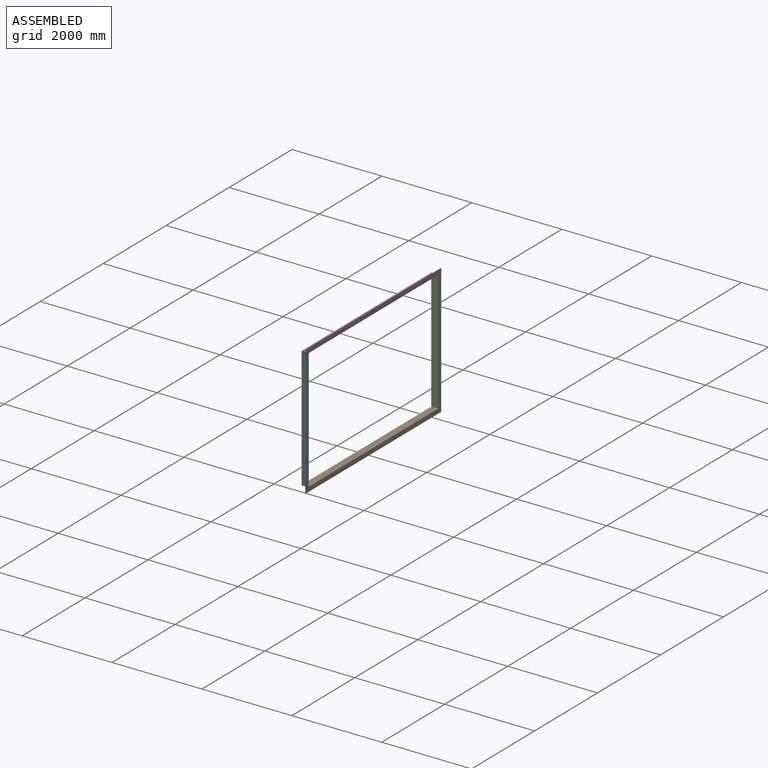
[diagram: assembled view]
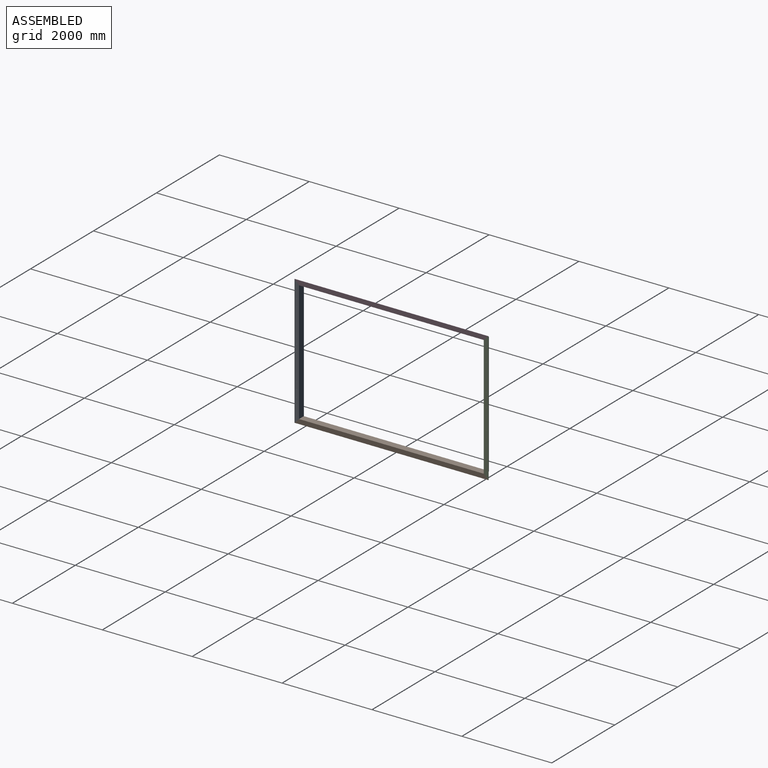
[diagram: assembled view, second angle]
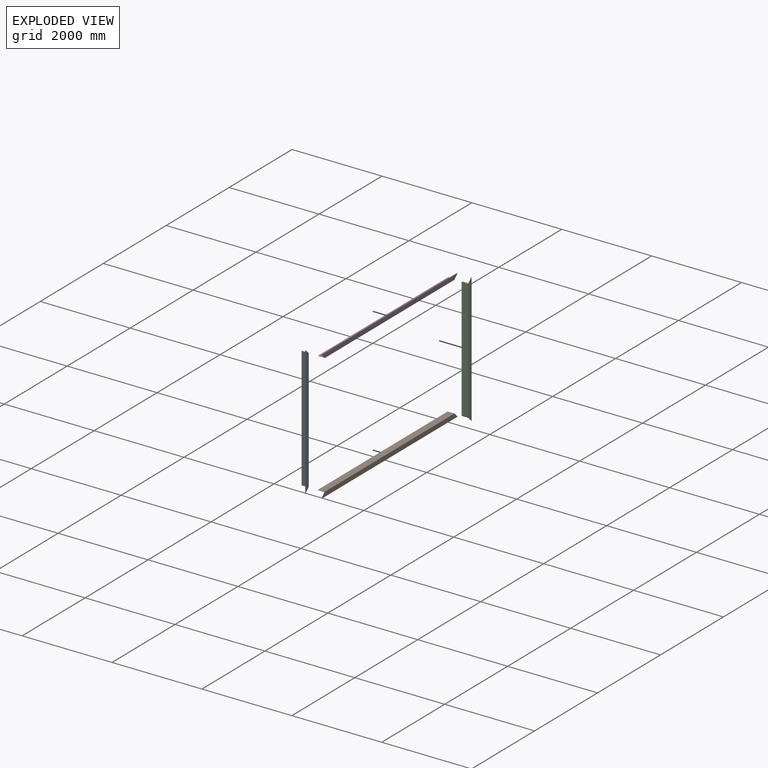
[diagram: exploded view]
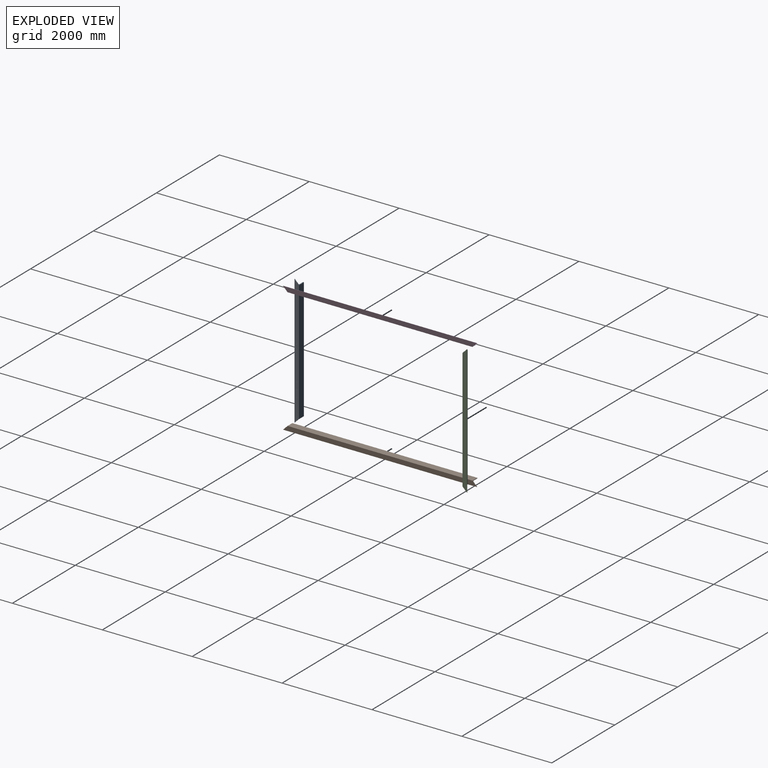
[diagram: exploded view, second angle]
ASSEMBLY  parts=4 mates=3
PART A: 32 faces, bbox 152.4x101.6x2891.8 mm
  f0: cylinder r=3.38mm len=9.53mm, axis (1,0,0), area 202.2mm2, adj f20,f23
  f1: cylinder r=3.38mm len=9.53mm, axis (1,0,0), area 202.2mm2, adj f20,f23
  f2: cylinder r=3.38mm len=9.53mm, axis (1,0,0), area 202.2mm2, adj f20,f23
  f3: cylinder r=3.38mm len=9.53mm, axis (1,0,0), area 202.2mm2, adj f20,f23
  f4: cylinder r=3.38mm len=9.53mm, axis (1,0,0), area 202.2mm2, adj f20,f23
  f5: cylinder r=3.38mm len=9.53mm, axis (1,0,0), area 202.2mm2, adj f20,f23
  f6: cylinder r=3.38mm len=9.53mm, axis (1,0,0), area 202.2mm2, adj f20,f23
  f7: cylinder r=3.38mm len=9.53mm, axis (1,0,0), area 202.2mm2, adj f20,f23
  f8: cylinder r=3.38mm len=9.53mm, axis (1,0,0), area 202.2mm2, adj f20,f23
  f9: cylinder r=3.38mm len=9.53mm, axis (1,0,0), area 202.2mm2, adj f20,f23
  f10: cylinder r=3.38mm len=9.53mm, axis (1,0,0), area 202.2mm2, adj f20,f23
  f11: cylinder r=3.38mm len=9.53mm, axis (1,0,0), area 202.2mm2, adj f20,f23
  f12: cylinder r=3.38mm len=9.53mm, axis (1,0,0), area 202.2mm2, adj f20,f23
  f13: cylinder r=3.38mm len=9.53mm, axis (1,0,0), area 202.2mm2, adj f20,f23
  f14: cylinder r=3.38mm len=9.53mm, axis (1,0,0), area 202.2mm2, adj f20,f23
  f15: cylinder r=3.38mm len=9.53mm, axis (1,0,0), area 202.2mm2, adj f20,f23
  f16: plane 152.4x48.41mm, normal (0,0.71,-0.71), area 2618.8mm2, adj f20,f21,f22,f23,f26,f27,f28,f31
  f17: plane 48.41x48.41mm, normal (0,0.71,-0.71), area 645.2mm2, adj f20,f23,f24,f25,f31
  f18: plane 152.4x48.41mm, normal (0,0.71,0.71), area 2618.8mm2, adj f20,f21,f22,f23,f26,f27,f28,f30
  f19: plane 48.41x48.41mm, normal (0,0.71,0.71), area 645.2mm2, adj f20,f23,f24,f25,f30
  f20: plane 2891.81x101.6mm, normal (1,0,0), area 282839.5mm2, adj f0,f1,f2,f3,f4,f5,f6,f7
  f21: plane 2707.66x125.41mm, normal (0,-1,0), area 339573.8mm2, adj f16,f18,f22,f28
  f22: cylinder r=12.7mm len=2733.06mm, axis (0,0,1), area 54199.1mm2, adj f16,f18,f21,f23
  f23: plane 2882.28x74.61mm, normal (-1,0,0), area 208841.8mm2, adj f0,f1,f2,f3,f4,f5,f6,f7
  f24: cylinder r=4.76mm len=2891.81mm, axis (0,0,1), area 21607.2mm2, adj f17,f19,f23,f25
  f25: plane 2891.81x4.76mm, normal (0,-1,0), area 13772.2mm2, adj f17,f19,f20,f24
  f26: plane 2688.61x152.4mm, normal (0,1,0), area 409743.4mm2, adj f16,f18,f20,f27
  f27: plane 2698.13x4.76mm, normal (-1,0,0), area 12827.2mm2, adj f16,f18,f26,f28
  f28: cylinder r=4.76mm len=2707.66mm, axis (0,0,1), area 20229.6mm2, adj f16,f18,f21,f27
  f29: cylinder r=3.38mm len=9.53mm, axis (1,0,0), area 202.2mm2, adj f20,f23
  f30: cylinder r=3.38mm len=9.53mm, axis (1,0,0), area 101.1mm2, adj f18,f19,f20,f23
  f31: cylinder r=3.38mm len=9.53mm, axis (1,0,0), area 101.1mm2, adj f16,f17,f20,f23
PART B: 42 faces, bbox 152.4x4314.2x101.6 mm
  f0: cylinder r=3.38mm len=9.53mm, axis (1,0,0), area 202.2mm2, adj f30,f33
  f1: cylinder r=3.38mm len=9.53mm, axis (1,0,0), area 202.2mm2, adj f30,f33
  f2: cylinder r=3.38mm len=9.53mm, axis (1,0,0), area 202.2mm2, adj f30,f33
  f3: cylinder r=3.38mm len=9.53mm, axis (1,0,0), area 202.2mm2, adj f30,f33
  f4: cylinder r=3.38mm len=9.53mm, axis (1,0,0), area 202.2mm2, adj f30,f33
  f5: cylinder r=3.38mm len=9.53mm, axis (1,0,0), area 202.2mm2, adj f30,f33
  f6: cylinder r=3.38mm len=9.53mm, axis (1,0,0), area 202.2mm2, adj f30,f33
  f7: cylinder r=3.38mm len=9.53mm, axis (1,0,0), area 202.2mm2, adj f30,f33
  f8: cylinder r=3.38mm len=9.53mm, axis (1,0,0), area 202.2mm2, adj f30,f33
  f9: cylinder r=3.38mm len=9.53mm, axis (1,0,0), area 202.2mm2, adj f30,f33
  f10: cylinder r=3.38mm len=9.53mm, axis (1,0,0), area 202.2mm2, adj f30,f33
  f11: cylinder r=3.38mm len=9.53mm, axis (1,0,0), area 202.2mm2, adj f30,f33
  f12: cylinder r=3.38mm len=9.53mm, axis (1,0,0), area 202.2mm2, adj f30,f33
  f13: cylinder r=3.38mm len=9.53mm, axis (1,0,0), area 202.2mm2, adj f30,f33
  f14: cylinder r=3.38mm len=9.53mm, axis (1,0,0), area 202.2mm2, adj f30,f33
  f15: cylinder r=3.38mm len=9.53mm, axis (1,0,0), area 202.2mm2, adj f30,f33
  f16: cylinder r=3.38mm len=9.53mm, axis (1,0,0), area 202.2mm2, adj f30,f33
  f17: cylinder r=3.38mm len=9.53mm, axis (1,0,0), area 202.2mm2, adj f30,f33
  f18: cylinder r=3.38mm len=9.53mm, axis (1,0,0), area 202.2mm2, adj f30,f33
  f19: cylinder r=3.38mm len=9.53mm, axis (1,0,0), area 202.2mm2, adj f30,f33
  f20: cylinder r=3.38mm len=9.53mm, axis (1,0,0), area 202.2mm2, adj f30,f33
  f21: cylinder r=3.38mm len=9.53mm, axis (1,0,0), area 202.2mm2, adj f30,f33
  f22: cylinder r=3.38mm len=9.53mm, axis (1,0,0), area 202.2mm2, adj f30,f33
  f23: cylinder r=3.38mm len=9.53mm, axis (1,0,0), area 202.2mm2, adj f30,f33
  f24: cylinder r=3.38mm len=9.53mm, axis (1,0,0), area 202.2mm2, adj f30,f33
  f25: cylinder r=3.38mm len=9.53mm, axis (1,0,0), area 202.2mm2, adj f30,f33
  f26: plane 152.4x48.41mm, normal (0,0.71,0.71), area 2618.8mm2, adj f30,f31,f32,f33,f36,f37,f38,f41
  f27: plane 48.41x48.41mm, normal (0,0.71,0.71), area 645.2mm2, adj f30,f33,f34,f35,f41
  f28: plane 152.4x48.41mm, normal (0,-0.71,0.71), area 2618.8mm2, adj f30,f31,f32,f33,f36,f37,f38,f40
  f29: plane 48.41x48.41mm, normal (0,-0.71,0.71), area 645.2mm2, adj f30,f33,f34,f35,f40
  f30: plane 4314.21x101.6mm, normal (1,0,0), area 426996.8mm2, adj f0,f1,f2,f3,f4,f5,f6,f7
  f31: plane 4130.06x125.41mm, normal (0,0,-1), area 517960.6mm2, adj f26,f28,f32,f38
  f32: cylinder r=12.7mm len=4155.46mm, axis (0,-1,0), area 82574.5mm2, adj f26,f28,f31,f33
  f33: plane 4304.68x74.61mm, normal (-1,0,0), area 314612.1mm2, adj f0,f1,f2,f3,f4,f5,f6,f7
  f34: cylinder r=4.76mm len=4314.21mm, axis (0,-1,0), area 32247.9mm2, adj f27,f29,f33,f35
  f35: plane 4314.21x4.76mm, normal (0,0,-1), area 20546.4mm2, adj f27,f29,f30,f34
  f36: plane 4111.01x152.4mm, normal (0,0,1), area 626517.2mm2, adj f26,f28,f30,f37
  f37: plane 4120.53x4.76mm, normal (-1,0,0), area 19601.3mm2, adj f26,f28,f36,f38
  f38: cylinder r=4.76mm len=4130.06mm, axis (0,-1,0), area 30870.3mm2, adj f26,f28,f31,f37
  f39: cylinder r=3.38mm len=9.53mm, axis (1,0,0), area 202.2mm2, adj f30,f33
  f40: cylinder r=3.38mm len=9.53mm, axis (1,0,0), area 101.1mm2, adj f28,f29,f30,f33
  f41: cylinder r=3.38mm len=9.53mm, axis (1,0,0), area 101.1mm2, adj f26,f27,f30,f33
PART C: same geometry as A
PART D: same geometry as B
PLACE A at identity
PLACE B at identity
PLACE C rot(axis=(1,0,0),180deg) t=(0,0,0)mm
PLACE D rot(axis=(-1,0,0),180deg) t=(0,0,0)mm
MATE fastened B.f30 <-> A.f20  axis (1,0,0) through (812.8,-2079.71,-1368.51)mm
MATE fastened D.f30 <-> A.f20  axis (1,0,0) through (812.8,-2079.71,1368.51)mm
MATE fastened C.f20 <-> D.f30  axis (1,0,0) through (812.8,2079.71,1368.51)mm
